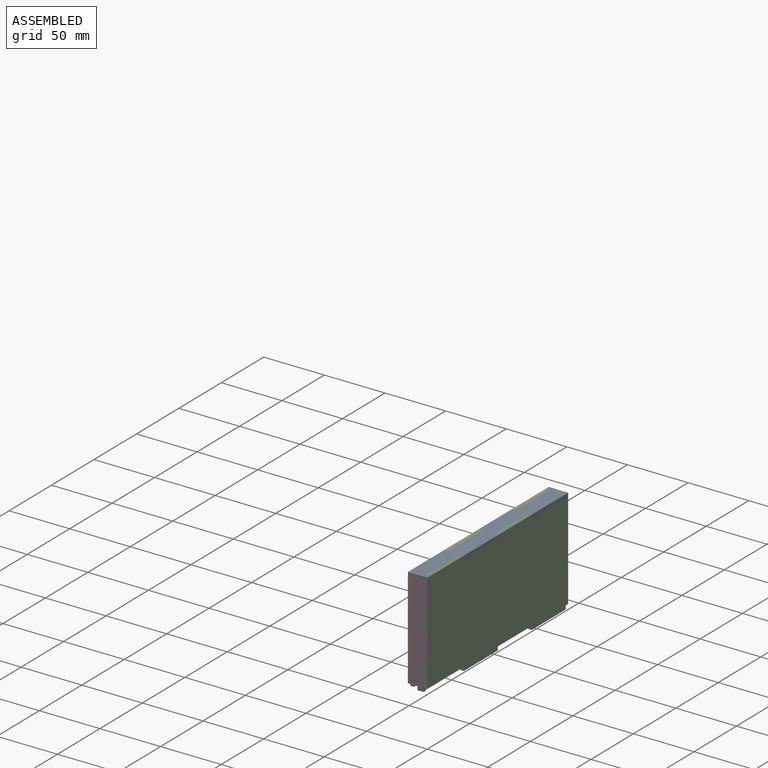
[diagram: assembled view]
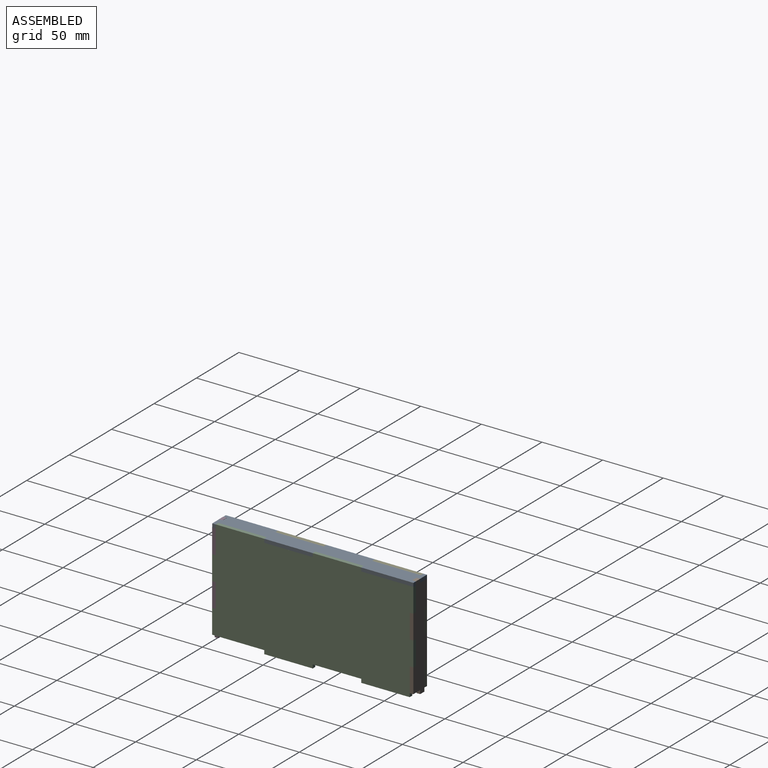
[diagram: assembled view, second angle]
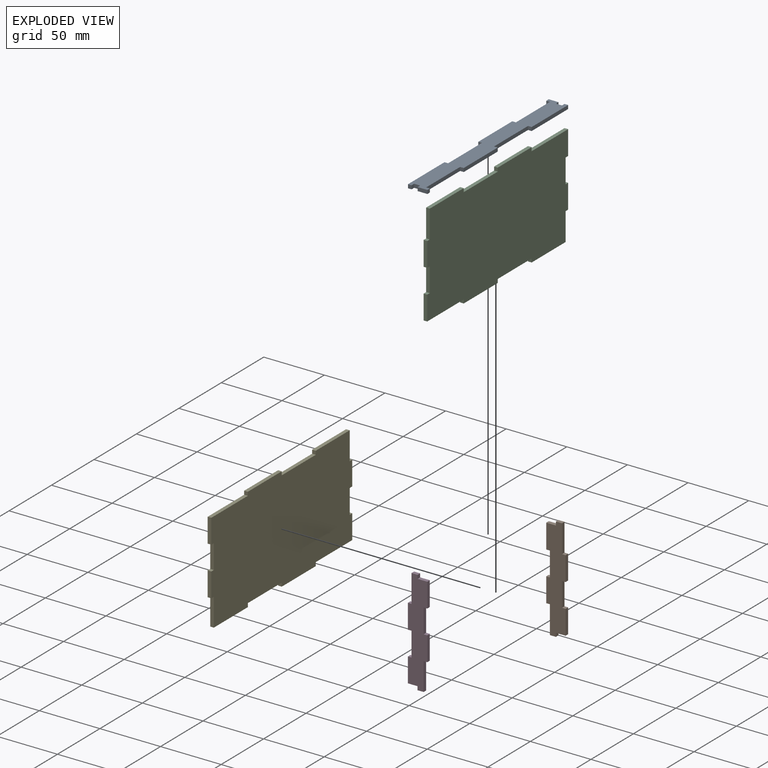
[diagram: exploded view]
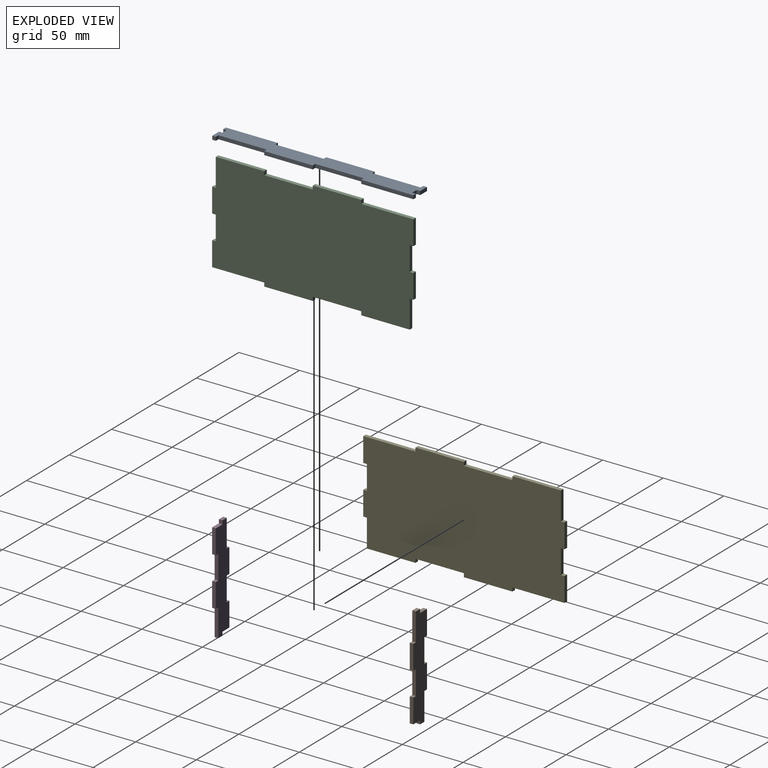
[diagram: exploded view, second angle]
ASSEMBLY  parts=5 mates=4
PART A: 30 faces, bbox 16x165.9x3 mm
  f0: plane 3x3mm, normal (0,1,0), area 9mm2, adj f1,f27,f28,f29
  f1: plane 40x3mm, normal (1,0,0), area 120mm2, adj f0,f2,f28,f29
  f2: plane 3x3mm, normal (0,-1,0), area 9mm2, adj f1,f3,f28,f29
  f3: plane 43x3mm, normal (1,0,0), area 129mm2, adj f2,f4,f28,f29
  f4: plane 3x3mm, normal (0,1,0), area 9mm2, adj f3,f5,f28,f29
  f5: plane 3x3mm, normal (-1,0,0), area 9mm2, adj f4,f6,f28,f29
  f6: plane 5x3mm, normal (0,1,0), area 15mm2, adj f5,f7,f28,f29
  f7: plane 3x3mm, normal (1,0,0), area 9mm2, adj f6,f8,f28,f29
  f8: plane 8x3mm, normal (0,1,0), area 24mm2, adj f7,f9,f28,f29
  f9: plane 3x3mm, normal (-1,0,0), area 9mm2, adj f8,f10,f28,f29
  f10: plane 3x3mm, normal (0,-1,0), area 9mm2, adj f9,f11,f28,f29
  f11: plane 40x3mm, normal (-1,0,0), area 120mm2, adj f10,f12,f28,f29
  f12: plane 3x3mm, normal (0,1,0), area 9mm2, adj f11,f13,f28,f29
  f13: plane 40x3mm, normal (-1,0,0), area 120mm2, adj f12,f14,f28,f29
  f14: plane 3x3mm, normal (0,-1,0), area 9mm2, adj f13,f15,f28,f29
  f15: plane 39.85x3mm, normal (-1,0,0), area 119.6mm2, adj f14,f16,f28,f29
  f16: plane 3x3mm, normal (0,1,0), area 9mm2, adj f15,f17,f28,f29
  f17: plane 43x3mm, normal (-1,0,0), area 129mm2, adj f16,f18,f28,f29
  f18: plane 3x3mm, normal (0,-1,0), area 9mm2, adj f17,f19,f28,f29
  f19: plane 3x3mm, normal (1,0,0), area 9mm2, adj f18,f20,f28,f29
  f20: plane 5x3mm, normal (0,-1,0), area 15mm2, adj f19,f21,f28,f29
  f21: plane 3x3mm, normal (-1,0,0), area 9mm2, adj f20,f22,f28,f29
  f22: plane 8x3mm, normal (0,-1,0), area 24mm2, adj f21,f23,f28,f29
  f23: plane 3x3mm, normal (1,0,0), area 9mm2, adj f22,f24,f28,f29
  f24: plane 3x3mm, normal (0,1,0), area 9mm2, adj f23,f25,f28,f29
  f25: plane 39.85x3mm, normal (1,0,0), area 119.6mm2, adj f24,f26,f28,f29
  f26: plane 3x3mm, normal (0,-1,0), area 9mm2, adj f25,f27,f28,f29
  f27: plane 40x3mm, normal (1,0,0), area 120mm2, adj f0,f26,f28,f29
  f28: plane 165.85x16mm, normal (0,0,1), area 2144.5mm2, adj f0,f1,f2,f3,f4,f5,f6,f7
  f29: plane 165.85x16mm, normal (0,0,-1), area 2144.5mm2, adj f0,f1,f2,f3,f4,f5,f6,f7
PART B: 22 faces, bbox 16x3x86 mm
  f0: plane 23x3mm, normal (1,0,0), area 69mm2, adj f1,f19,f20,f21
  f1: plane 3x3mm, normal (0,0,-1), area 9mm2, adj f0,f2,f20,f21
  f2: plane 20x3mm, normal (1,0,0), area 60mm2, adj f1,f3,f20,f21
  f3: plane 3x3mm, normal (0,0,1), area 9mm2, adj f2,f4,f20,f21
  f4: plane 20x3mm, normal (1,0,0), area 60mm2, adj f3,f5,f20,f21
  f5: plane 3x3mm, normal (0,0,-1), area 9mm2, adj f4,f6,f20,f21
  f6: plane 20x3mm, normal (1,0,0), area 60mm2, adj f5,f7,f20,f21
  f7: plane 8x3mm, normal (0,0,1), area 24mm2, adj f6,f8,f20,f21
  f8: plane 3x3mm, normal (1,0,0), area 9mm2, adj f7,f9,f20,f21
  f9: plane 5x3mm, normal (0,0,1), area 15mm2, adj f8,f10,f20,f21
  f10: plane 23x3mm, normal (-1,0,0), area 69mm2, adj f9,f11,f20,f21
  f11: plane 3x3mm, normal (0,0,1), area 9mm2, adj f10,f12,f20,f21
  f12: plane 20x3mm, normal (-1,0,0), area 60mm2, adj f11,f13,f20,f21
  f13: plane 3x3mm, normal (0,0,-1), area 9mm2, adj f12,f14,f20,f21
  f14: plane 20x3mm, normal (-1,0,0), area 60mm2, adj f13,f15,f20,f21
  f15: plane 3x3mm, normal (0,0,1), area 9mm2, adj f14,f16,f20,f21
  f16: plane 20x3mm, normal (-1,0,0), area 60mm2, adj f15,f17,f20,f21
  f17: plane 8x3mm, normal (0,0,-1), area 24mm2, adj f16,f18,f20,f21
  f18: plane 3x3mm, normal (-1,0,0), area 9mm2, adj f17,f19,f20,f21
  f19: plane 5x3mm, normal (0,0,-1), area 15mm2, adj f0,f18,f20,f21
  f20: plane 86x16mm, normal (0,-1,0), area 1070mm2, adj f0,f1,f2,f3,f4,f5,f6,f7
  f21: plane 86x16mm, normal (0,1,0), area 1070mm2, adj f0,f1,f2,f3,f4,f5,f6,f7
PART C: 30 faces, bbox 3x166x86 mm
  f0: plane 40x3mm, normal (0,0,-1), area 120mm2, adj f1,f27,f28,f29
  f1: plane 23x3mm, normal (0,1,0), area 69mm2, adj f0,f2,f28,f29
  f2: plane 3x3mm, normal (0,0,-1), area 9mm2, adj f1,f3,f28,f29
  f3: plane 20x3mm, normal (0,1,0), area 60mm2, adj f2,f4,f28,f29
  f4: plane 3x3mm, normal (0,0,1), area 9mm2, adj f3,f5,f28,f29
  f5: plane 20x3mm, normal (0,1,0), area 60mm2, adj f4,f6,f28,f29
  f6: plane 3x3mm, normal (0,0,-1), area 9mm2, adj f5,f7,f28,f29
  f7: plane 20x3mm, normal (0,1,0), area 60mm2, adj f6,f8,f28,f29
  f8: plane 43x3mm, normal (0,0,1), area 129mm2, adj f7,f9,f28,f29
  f9: plane 3x3mm, normal (0,1,0), area 9mm2, adj f8,f10,f28,f29
  f10: plane 40x3mm, normal (0,0,1), area 120mm2, adj f9,f11,f28,f29
  f11: plane 3x3mm, normal (0,-1,0), area 9mm2, adj f10,f12,f28,f29
  f12: plane 40x3mm, normal (0,0,1), area 120mm2, adj f11,f13,f28,f29
  f13: plane 3x3mm, normal (0,1,0), area 9mm2, adj f12,f14,f28,f29
  f14: plane 40x3mm, normal (0,0,1), area 120mm2, adj f13,f15,f28,f29
  f15: plane 23x3mm, normal (0,-1,0), area 69mm2, adj f14,f16,f28,f29
  f16: plane 3x3mm, normal (0,0,1), area 9mm2, adj f15,f17,f28,f29
  f17: plane 20x3mm, normal (0,-1,0), area 60mm2, adj f16,f18,f28,f29
  f18: plane 3x3mm, normal (0,0,-1), area 9mm2, adj f17,f19,f28,f29
  f19: plane 20x3mm, normal (0,-1,0), area 60mm2, adj f18,f20,f28,f29
  f20: plane 3x3mm, normal (0,0,1), area 9mm2, adj f19,f21,f28,f29
  f21: plane 20x3mm, normal (0,-1,0), area 60mm2, adj f20,f22,f28,f29
  f22: plane 43x3mm, normal (0,0,-1), area 129mm2, adj f21,f23,f28,f29
  f23: plane 3x3mm, normal (0,-1,0), area 9mm2, adj f22,f24,f28,f29
  f24: plane 40x3mm, normal (0,0,-1), area 120mm2, adj f23,f25,f28,f29
  f25: plane 3x3mm, normal (0,1,0), area 9mm2, adj f24,f26,f28,f29
  f26: plane 40x3mm, normal (0,0,-1), area 120mm2, adj f25,f27,f28,f29
  f27: plane 3x3mm, normal (0,-1,0), area 9mm2, adj f0,f26,f28,f29
  f28: plane 166x86mm, normal (1,0,0), area 13520mm2, adj f0,f1,f2,f3,f4,f5,f6,f7
  f29: plane 166x86mm, normal (-1,0,0), area 13520mm2, adj f0,f1,f2,f3,f4,f5,f6,f7
PART D: same geometry as B
PART E: same geometry as C
PLACE A t=(-73.24,211.89,-28.3)mm
PLACE B rot(axis=(1,0,0),180deg) t=(-73.24,211.89,-22.9)mm
PLACE C t=(-73.24,211.89,-28.3)mm
PLACE D t=(-73.24,211.89,-28.3)mm
PLACE E rot(axis=(0,0,-1),180deg) t=(-83.24,211.89,-28.3)mm
MATE fastened A.f12 <-> E.f13  axis (0,1,0) through (-84.74,251.89,15.9)mm
MATE fastened D.f5 <-> C.f16  axis (0,0,-1) through (-71.74,130.39,-5.6)mm
MATE fastened E.f18 <-> B.f13  axis (0,0,-1) through (-84.74,293.39,-25.6)mm
MATE fastened B.f5 <-> C.f2  axis (0,0,1) through (-71.74,293.39,-45.6)mm
